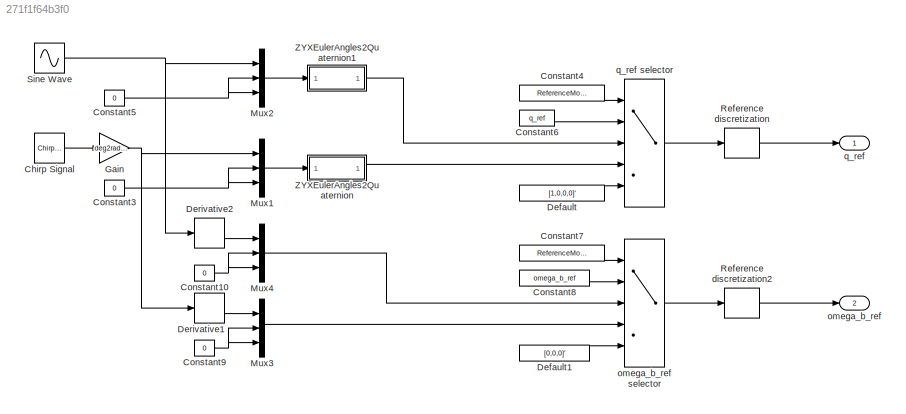
MODEL slx_271f1f64b3f0
KIND model
CONFIG AbsTol = auto
CONFIG EnableMultiTasking = off
CONFIG FixedStep = auto
CONFIG InitFcn = Parameters_General\nParameters_Simulation\nParameters_Controllers
CONFIG MaxStep = auto
CONFIG MinStep = auto
CONFIG PreLoadFcn = modelDir = fileparts(get_param(bdroot, 'FileName'));\naddpath(fullfile(modelDir,'../Parameters'));\naddpath(fullfile(modelDir,'subsystems'));\n\nParameters_General\nParameters_Simulation\nParameters_Controllers
CONFIG RelTol = 1e-3
CONFIG SampleTimeConstraint = Unconstrained
CONFIG Solver = VariableStepAuto
CONFIG SolverName = VariableStepAuto
CONFIG StartTime = 0.0
CONFIG StopTime = 10.0
BLOCK [Reference] Chirp Signal  REF=simulink/Sources/Chirp Signal
  Ports = [0, 1]
  SourceBlock = simulink/Sources/Chirp Signal
  SourceProductBaseCode = SL
  SourceProductName = Simulink
  SourceType = chirp
BLOCK [Constant] Constant10
  Value = 0
BLOCK [Constant] Constant3
  Value = 0
BLOCK [Constant] Constant4
  Value = ReferenceMode
BLOCK [Constant] Constant5
  Value = 0
BLOCK [Constant] Constant6
  Value = q_ref
BLOCK [Constant] Constant7
  Value = ReferenceMode
BLOCK [Constant] Constant8
  Value = omega_b_ref
BLOCK [Constant] Constant9
  Value = 0
BLOCK [Constant] Default
  Value = [1,0,0,0]'
BLOCK [Constant] Default1
  Value = [0,0,0]'
BLOCK [Derivative] Derivative1
BLOCK [Derivative] Derivative2
BLOCK [Gain] Gain
  Gain = deg2rad(chirp_amplitude_deg)
  OutDataTypeStr = Inherit: Inherit via internal rule
  ParamDataTypeStr = Inherit: Inherit via internal rule
  SaturateOnIntegerOverflow = off
BLOCK [Mux] Mux1
  DisplayOption = bar
  Inputs = 3
  Ports = [3, 1]
BLOCK [Mux] Mux2
  DisplayOption = bar
  Inputs = 3
  Ports = [3, 1]
BLOCK [Mux] Mux3
  DisplayOption = bar
  Inputs = 3
  Ports = [3, 1]
BLOCK [Mux] Mux4
  DisplayOption = bar
  Inputs = 3
  Ports = [3, 1]
BLOCK [ZeroOrderHold] Reference discretization
  SampleTime = Ts
BLOCK [ZeroOrderHold] Reference discretization2
  SampleTime = Ts
BLOCK [Sin] Sine Wave
  Amplitude = deg2rad(roll_sine_amplitude_deg)
  Frequency = 2*pi*f_sine
  Ports = [0, 1]
  SampleTime = 0
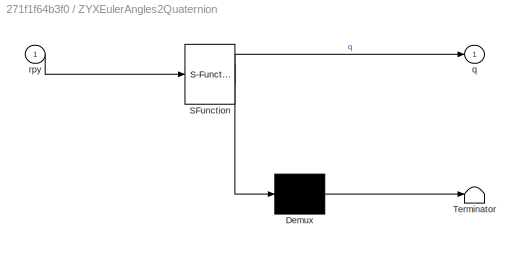
BLOCK [SubSystem] ZYXEulerAngles2Quaternion
  ErrorFcn = Stateflow.Translate.translate
  PermitHierarchicalResolution = ExplicitOnly
  Ports = [1, 1]
  RequestExecContextInheritance = off
  SFBlockType = MATLAB Function
  TreatAsAtomicUnit = on
BLOCK [Demux] ZYXEulerAngles2Quaternion/ Demux 
  Outputs = 1
  Ports = [1, 1]
BLOCK [S-Function] ZYXEulerAngles2Quaternion/ SFunction 
  EnableBusSupport = on
  FunctionName = sf_sfun
  PortCounts = [1 2]
  Ports = [1, 2]
  SFcnIsStateOwnerBlock = off
  SFunctionDeploymentMode = off
  Tag = Stateflow S-Function ReferenceGenerator 1
BLOCK [Terminator] ZYXEulerAngles2Quaternion/ Terminator 
BLOCK [Outport] ZYXEulerAngles2Quaternion/q
  IconDisplay = Port number
BLOCK [Inport] ZYXEulerAngles2Quaternion/rpy
  IconDisplay = Port number
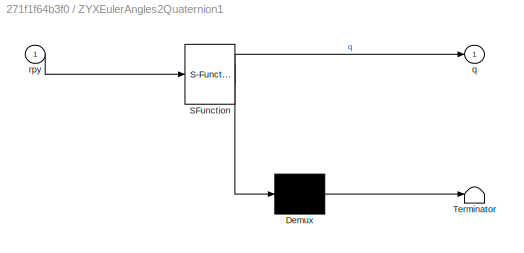
BLOCK [SubSystem] ZYXEulerAngles2Quaternion1
  ErrorFcn = Stateflow.Translate.translate
  PermitHierarchicalResolution = ExplicitOnly
  Ports = [1, 1]
  RequestExecContextInheritance = off
  SFBlockType = MATLAB Function
  TreatAsAtomicUnit = on
BLOCK [Demux] ZYXEulerAngles2Quaternion1/ Demux 
  Outputs = 1
  Ports = [1, 1]
BLOCK [S-Function] ZYXEulerAngles2Quaternion1/ SFunction 
  EnableBusSupport = on
  FunctionName = sf_sfun
  PortCounts = [1 2]
  Ports = [1, 2]
  SFcnIsStateOwnerBlock = off
  SFunctionDeploymentMode = off
  Tag = Stateflow S-Function ReferenceGenerator 2
BLOCK [Terminator] ZYXEulerAngles2Quaternion1/ Terminator 
BLOCK [Outport] ZYXEulerAngles2Quaternion1/q
  IconDisplay = Port number
BLOCK [Inport] ZYXEulerAngles2Quaternion1/rpy
  IconDisplay = Port number
BLOCK [Outport] omega_b_ref
  IconDisplay = Port number
  Port = 2
BLOCK [MultiPortSwitch] omega_b_ref selector
  DataPortForDefault = Additional data port
  DataPortOrder = Zero-based contiguous
  InputSameDT = off
  Ports = [5, 1]
  SaturateOnIntegerOverflow = off
  zeroidx = on
BLOCK [Outport] q_ref
  IconDisplay = Port number
BLOCK [MultiPortSwitch] q_ref selector
  DataPortForDefault = Additional data port
  DataPortOrder = Zero-based contiguous
  InputSameDT = off
  Ports = [5, 1]
  SaturateOnIntegerOverflow = off
  zeroidx = on
LINE Chirp Signal:1 -> Gain:1
NET Constant10:1 -> Mux4:2, Mux4:3
NET Constant3:1 -> Mux1:2, Mux1:3
LINE Constant4:1 -> q_ref selector:1
NET Constant5:1 -> Mux2:2, Mux2:3
LINE Constant6:1 -> q_ref selector:2
LINE Constant7:1 -> omega_b_ref selector:1
LINE Constant8:1 -> omega_b_ref selector:2
NET Constant9:1 -> Mux3:2, Mux3:3
LINE Default1:1 -> omega_b_ref selector:5
LINE Default:1 -> q_ref selector:5
LINE Derivative1:1 -> Mux3:1
LINE Derivative2:1 -> Mux4:1
NET Gain:1 -> Derivative1:1, Mux1:1
LINE Mux1:1 -> ZYXEulerAngles2Quaternion:1
LINE Mux2:1 -> ZYXEulerAngles2Quaternion1:1
LINE Mux3:1 -> omega_b_ref selector:4
LINE Mux4:1 -> omega_b_ref selector:3
LINE Reference discretization2:1 -> omega_b_ref:1
LINE Reference discretization:1 -> q_ref:1
NET Sine Wave:1 -> Derivative2:1, Mux2:1
LINE ZYXEulerAngles2Quaternion1:1 -> q_ref selector:3
LINE ZYXEulerAngles2Quaternion:1 -> q_ref selector:4
LINE omega_b_ref selector:1 -> Reference discretization2:1
LINE q_ref selector:1 -> Reference discretization:1
note: NET lines group one-source signal fan-out (src -> all destinations, sorted); 1:1 wires keep LINE
CHART ZYXEulerAngles2Quaternion states=1 transitions=1
  STATE_LABEL 'eML_blk_kernel()'
  STATE_LABEL 'SCRIPT:\nfunction q = ZYXEulerAngles2Quaternion(rpy)\n    q = ZYXEulerAngles2Quaternion(rpy);\nend'
CHART ZYXEulerAngles2Quaternion1 states=1 transitions=1
  STATE_LABEL 'eML_blk_kernel()'
  STATE_LABEL 'SCRIPT:\nfunction q = ZYXEulerAngles2Quaternion(rpy)\n    q = ZYXEulerAngles2Quaternion(rpy);\nend'
